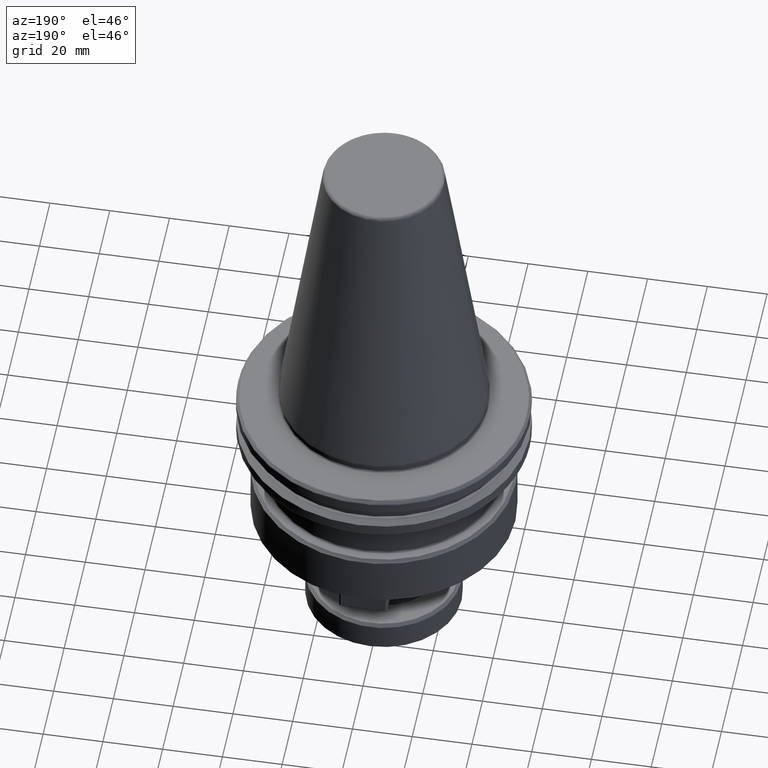
[diagram: clean part render]
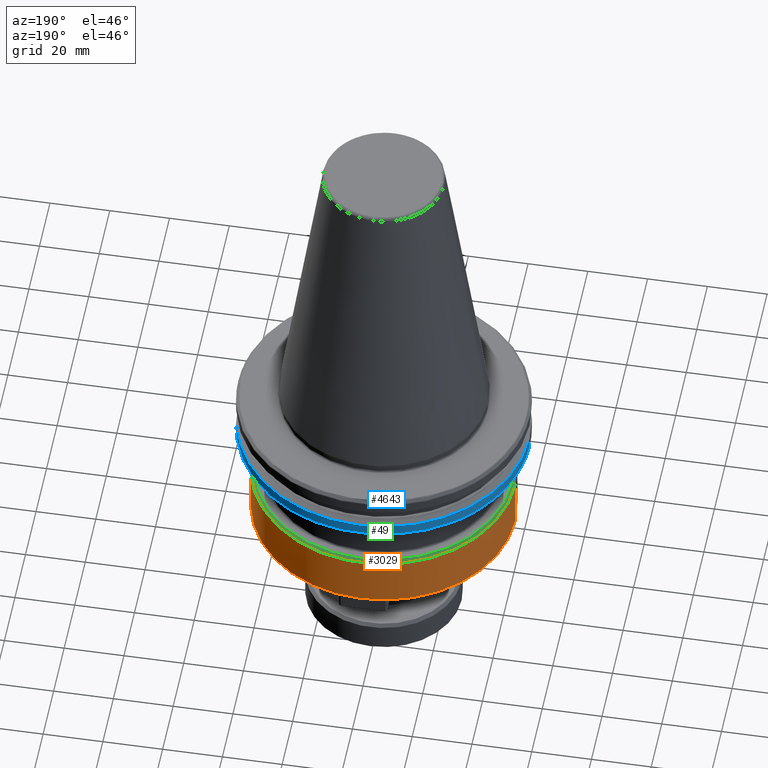
[diagram: same view with three faces highlighted in distinct colors, each labeled with its STEP entity id]
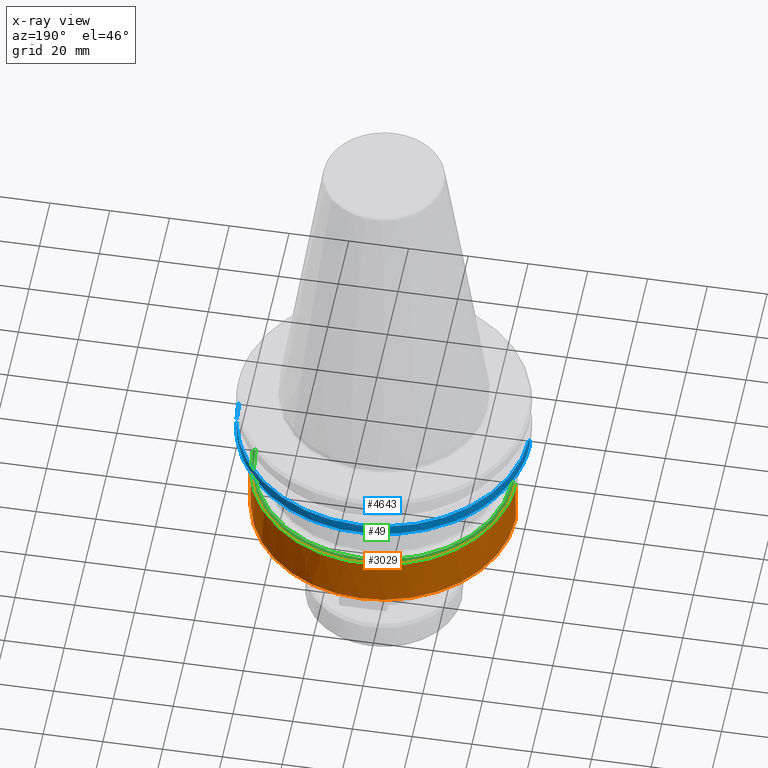
[diagram: x-ray of the same camera — body ghosted, the three highlighted faces saturated]
A machine part, auxiliary view with three faces highlighted in distinct colors.
The next image is the same camera in x-ray (body ghosted, the three faces saturated) — at least one of them is partly hidden behind the body in this view.
Their STEP definitions:

[orange] entity #3029 — the highlighted cylindrical surface (partial cylindrical patch) has radius 44 mm, axis along (0, 0, 1).
#22 = EDGE_CURVE ( 'NONE', #2137, #3876, #2977, .T. ) ;
#152 = VERTEX_POINT ( 'NONE', #4481 ) ;
#434 = ORIENTED_EDGE ( 'NONE', *, *, #4235, .T. ) ;
#473 = VERTEX_POINT ( 'NONE', #2372 ) ;
#618 = CARTESIAN_POINT ( 'NONE',  ( 0.0000000000000000000, 0.0000000000000000000, 0.0000000000000000000 ) ) ;
#655 = CARTESIAN_POINT ( 'NONE',  ( 0.0000000000000000000, 0.0000000000000000000, -37.00000000000000700 ) ) ;
#905 = VERTEX_POINT ( 'NONE', #4926 ) ;
#1079 = DIRECTION ( 'NONE',  ( -1.000000000000000000, 0.0000000000000000000, 0.0000000000000000000 ) ) ;
#1131 = VECTOR ( 'NONE', #3857, 1000.000000000000000 ) ;
#1318 = CYLINDRICAL_SURFACE ( 'NONE', #2894, 44.00000000000000000 ) ;
#1518 = DIRECTION ( 'NONE',  ( -0.0000000000000000000, -0.0000000000000000000, 1.000000000000000000 ) ) ;
#1564 = EDGE_LOOP ( 'NONE', ( #2395, #434, #2377, #1833, #3425 ) ) ;
#1634 = EDGE_CURVE ( 'NONE', #3876, #152, #3373, .T. ) ;
#1698 = DIRECTION ( 'NONE',  ( 1.000000000000000000, 0.0000000000000000000, 0.0000000000000000000 ) ) ;
#1751 = DIRECTION ( 'NONE',  ( 0.0000000000000000000, 0.0000000000000000000, 1.000000000000000000 ) ) ;
#1762 = CARTESIAN_POINT ( 'NONE',  ( 0.0000000000000000000, 0.0000000000000000000, -54.00000000000000000 ) ) ;
#1833 = ORIENTED_EDGE ( 'NONE', *, *, #3144, .F. ) ;
#2137 = VERTEX_POINT ( 'NONE', #2619 ) ;
#2219 = DIRECTION ( 'NONE',  ( 0.0000000000000000000, 0.0000000000000000000, 1.000000000000000000 ) ) ;
#2302 = DIRECTION ( 'NONE',  ( 0.0000000000000000000, 0.0000000000000000000, 1.000000000000000000 ) ) ;
#2372 = CARTESIAN_POINT ( 'NONE',  ( -44.00000000000000000, 5.388445916248353600E-015, -37.00000000000000700 ) ) ;
#2377 = ORIENTED_EDGE ( 'NONE', *, *, #3912, .F. ) ;
#2387 = FACE_OUTER_BOUND ( 'NONE', #1564, .T. ) ;
#2395 = ORIENTED_EDGE ( 'NONE', *, *, #1634, .T. ) ;
#2619 = CARTESIAN_POINT ( 'NONE',  ( 44.00000000000000000, 0.0000000000000000000, -54.00000000000000000 ) ) ;
#2894 = AXIS2_PLACEMENT_3D ( 'NONE', #618, #2302, #4469 ) ;
#2977 = CIRCLE ( 'NONE', #3361, 44.00000000000000000 ) ;
#3029 = ADVANCED_FACE ( 'NONE', ( #2387 ), #1318, .T. ) ;
#3143 = LINE ( 'NONE', #4202, #1131 ) ;
#3144 = EDGE_CURVE ( 'NONE', #2137, #905, #3143, .T. ) ;
#3359 = DIRECTION ( 'NONE',  ( 1.000000000000000000, 0.0000000000000000000, 0.0000000000000000000 ) ) ;
#3361 = AXIS2_PLACEMENT_3D ( 'NONE', #4707, #4063, #3359 ) ;
#3373 = CIRCLE ( 'NONE', #4730, 44.00000000000000000 ) ;
#3425 = ORIENTED_EDGE ( 'NONE', *, *, #22, .T. ) ;
#3847 = CIRCLE ( 'NONE', #3890, 44.00000000000000000 ) ;
#3857 = DIRECTION ( 'NONE',  ( 0.0000000000000000000, 0.0000000000000000000, 1.000000000000000000 ) ) ;
#3876 = VERTEX_POINT ( 'NONE', #4788 ) ;
#3890 = AXIS2_PLACEMENT_3D ( 'NONE', #655, #1518, #1079 ) ;
#3912 = EDGE_CURVE ( 'NONE', #905, #473, #3847, .T. ) ;
#3992 = CARTESIAN_POINT ( 'NONE',  ( -44.00000000000000000, 5.388445916248353600E-015, 0.0000000000000000000 ) ) ;
#4063 = DIRECTION ( 'NONE',  ( 0.0000000000000000000, 0.0000000000000000000, 1.000000000000000000 ) ) ;
#4202 = CARTESIAN_POINT ( 'NONE',  ( 44.00000000000000000, 0.0000000000000000000, 0.0000000000000000000 ) ) ;
#4235 = EDGE_CURVE ( 'NONE', #152, #473, #4747, .T. ) ;
#4469 = DIRECTION ( 'NONE',  ( 1.000000000000000000, 0.0000000000000000000, 0.0000000000000000000 ) ) ;
#4481 = CARTESIAN_POINT ( 'NONE',  ( -44.00000000000000000, 5.388445916248353600E-015, -54.00000000000000000 ) ) ;
#4694 = VECTOR ( 'NONE', #2219, 1000.000000000000000 ) ;
#4707 = CARTESIAN_POINT ( 'NONE',  ( 0.0000000000000000000, 0.0000000000000000000, -54.00000000000000000 ) ) ;
#4730 = AXIS2_PLACEMENT_3D ( 'NONE', #1762, #1751, #1698 ) ;
#4747 = LINE ( 'NONE', #3992, #4694 ) ;
#4788 = CARTESIAN_POINT ( 'NONE',  ( 5.388445916248352800E-015, 43.99999999999999300, -54.00000000000000000 ) ) ;
#4926 = CARTESIAN_POINT ( 'NONE',  ( 44.00000000000000000, 0.0000000000000000000, -37.00000000000000700 ) ) ;

[blue] entity #4643 — the highlighted cylindrical surface (partial cylindrical patch) has radius 48.75 mm, axis along (0, 0, 1).
#31 = AXIS2_PLACEMENT_3D ( 'NONE', #4576, #4237, #2055 ) ;
#216 = CYLINDRICAL_SURFACE ( 'NONE', #1454, 48.75000000000000000 ) ;
#231 = DIRECTION ( 'NONE',  ( 1.000000000000000000, 0.0000000000000000000, 0.0000000000000000000 ) ) ;
#342 = VERTEX_POINT ( 'NONE', #2580 ) ;
#353 = CARTESIAN_POINT ( 'NONE',  ( -38.42606537234849600, 30.00000000000000000, -17.93431457505076300 ) ) ;
#394 = CIRCLE ( 'NONE', #31, 48.75000000000000000 ) ;
#401 = DIRECTION ( 'NONE',  ( 0.0000000000000000000, 0.0000000000000000000, 1.000000000000000000 ) ) ;
#581 = ORIENTED_EDGE ( 'NONE', *, *, #1088, .T. ) ;
#630 = VERTEX_POINT ( 'NONE', #353 ) ;
#658 = DIRECTION ( 'NONE',  ( 1.000000000000000000, 0.0000000000000000000, 0.0000000000000000000 ) ) ;
#659 = DIRECTION ( 'NONE',  ( 0.0000000000000000000, 0.0000000000000000000, 1.000000000000000000 ) ) ;
#680 = CARTESIAN_POINT ( 'NONE',  ( 0.0000000000000000000, 0.0000000000000000000, -17.93431457505076300 ) ) ;
#686 = CIRCLE ( 'NONE', #3106, 48.75000000000000000 ) ;
#754 = CARTESIAN_POINT ( 'NONE',  ( -48.75000000000000000, 5.970153145843347100E-015, -17.93431457505076300 ) ) ;
#769 = EDGE_CURVE ( 'NONE', #3188, #2632, #4126, .T. ) ;
#773 = ORIENTED_EDGE ( 'NONE', *, *, #3423, .F. ) ;
#950 = CIRCLE ( 'NONE', #1957, 48.75000000000000000 ) ;
#961 = ORIENTED_EDGE ( 'NONE', *, *, #3886, .T. ) ;
#1030 = ORIENTED_EDGE ( 'NONE', *, *, #3303, .T. ) ;
#1054 = CARTESIAN_POINT ( 'NONE',  ( 46.87302845420869300, 13.39707817141268900, -17.93431457505076300 ) ) ;
#1088 = EDGE_CURVE ( 'NONE', #1479, #630, #3963, .T. ) ;
#1102 = DIRECTION ( 'NONE',  ( -0.0000000000000000000, -0.0000000000000000000, 1.000000000000000000 ) ) ;
#1284 = DIRECTION ( 'NONE',  ( 1.000000000000000000, 0.0000000000000000000, 0.0000000000000000000 ) ) ;
#1311 = EDGE_CURVE ( 'NONE', #3188, #3830, #4879, .T. ) ;
#1454 = AXIS2_PLACEMENT_3D ( 'NONE', #2878, #1568, #1617 ) ;
#1464 = CARTESIAN_POINT ( 'NONE',  ( 48.75000000000000000, 0.0000000000000000000, -14.34759526419165900 ) ) ;
#1479 = VERTEX_POINT ( 'NONE', #3048 ) ;
#1542 = DIRECTION ( 'NONE',  ( -1.000000000000000000, 0.0000000000000000000, 0.0000000000000000000 ) ) ;
#1568 = DIRECTION ( 'NONE',  ( 0.0000000000000000000, 0.0000000000000000000, 1.000000000000000000 ) ) ;
#1581 = EDGE_LOOP ( 'NONE', ( #3613, #1030, #2385, #773, #4243, #3414, #961, #581, #2720 ) ) ;
#1617 = DIRECTION ( 'NONE',  ( 1.000000000000000000, 0.0000000000000000000, 0.0000000000000000000 ) ) ;
#1680 = VECTOR ( 'NONE', #401, 1000.000000000000000 ) ;
#1720 = DIRECTION ( 'NONE',  ( -0.0000000000000000000, -0.0000000000000000000, 1.000000000000000000 ) ) ;
#1752 = CARTESIAN_POINT ( 'NONE',  ( 0.0000000000000000000, 48.75000000000000000, -14.34759526419165900 ) ) ;
#1957 = AXIS2_PLACEMENT_3D ( 'NONE', #680, #659, #658 ) ;
#2019 = AXIS2_PLACEMENT_3D ( 'NONE', #4834, #3002, #3659 ) ;
#2055 = DIRECTION ( 'NONE',  ( -1.000000000000000000, -8.881784197001252300E-016, 0.0000000000000000000 ) ) ;
#2385 = ORIENTED_EDGE ( 'NONE', *, *, #3178, .F. ) ;
#2443 = LINE ( 'NONE', #2476, #1680 ) ;
#2476 = CARTESIAN_POINT ( 'NONE',  ( -48.75000000000000000, 5.970153145843347100E-015, 113.5216080541959500 ) ) ;
#2580 = CARTESIAN_POINT ( 'NONE',  ( -46.83796378645138200, 13.51915856623736000, -17.93431457505076300 ) ) ;
#2632 = VERTEX_POINT ( 'NONE', #1054 ) ;
#2700 = AXIS2_PLACEMENT_3D ( 'NONE', #4445, #4438, #4432 ) ;
#2704 = DIRECTION ( 'NONE',  ( 0.0000000000000000000, 0.0000000000000000000, 1.000000000000000000 ) ) ;
#2720 = ORIENTED_EDGE ( 'NONE', *, *, #2783, .T. ) ;
#2772 = VERTEX_POINT ( 'NONE', #754 ) ;
#2783 = EDGE_CURVE ( 'NONE', #630, #342, #950, .T. ) ;
#2861 = FACE_OUTER_BOUND ( 'NONE', #1581, .T. ) ;
#2878 = CARTESIAN_POINT ( 'NONE',  ( 0.0000000000000000000, 0.0000000000000000000, 113.5216080541959500 ) ) ;
#2898 = VERTEX_POINT ( 'NONE', #4046 ) ;
#3002 = DIRECTION ( 'NONE',  ( -0.0000000000000000000, -0.0000000000000000000, 1.000000000000000000 ) ) ;
#3047 = AXIS2_PLACEMENT_3D ( 'NONE', #3421, #1102, #1542 ) ;
#3048 = CARTESIAN_POINT ( 'NONE',  ( -29.99999999999999600, 38.42606537234850400, -17.93431457505076300 ) ) ;
#3106 = AXIS2_PLACEMENT_3D ( 'NONE', #3940, #1720, #1284 ) ;
#3178 = EDGE_CURVE ( 'NONE', #4357, #2898, #394, .T. ) ;
#3188 = VERTEX_POINT ( 'NONE', #4921 ) ;
#3193 = AXIS2_PLACEMENT_3D ( 'NONE', #4799, #2704, #231 ) ;
#3303 = EDGE_CURVE ( 'NONE', #2772, #2898, #2443, .T. ) ;
#3414 = ORIENTED_EDGE ( 'NONE', *, *, #769, .T. ) ;
#3421 = CARTESIAN_POINT ( 'NONE',  ( 0.0000000000000000000, 0.0000000000000000000, -14.34759526419165900 ) ) ;
#3423 = EDGE_CURVE ( 'NONE', #3830, #4357, #4806, .T. ) ;
#3537 = DIRECTION ( 'NONE',  ( 0.0000000000000000000, 0.0000000000000000000, 1.000000000000000000 ) ) ;
#3613 = ORIENTED_EDGE ( 'NONE', *, *, #4109, .T. ) ;
#3659 = DIRECTION ( 'NONE',  ( 1.000000000000000000, 0.0000000000000000000, 0.0000000000000000000 ) ) ;
#3830 = VERTEX_POINT ( 'NONE', #1464 ) ;
#3886 = EDGE_CURVE ( 'NONE', #2632, #1479, #4211, .T. ) ;
#3940 = CARTESIAN_POINT ( 'NONE',  ( 0.0000000000000000000, 0.0000000000000000000, -17.93431457505076300 ) ) ;
#3963 = CIRCLE ( 'NONE', #2700, 48.75000000000000000 ) ;
#4046 = CARTESIAN_POINT ( 'NONE',  ( -48.75000000000000000, 5.970153145843347100E-015, -14.34759526419165900 ) ) ;
#4096 = CARTESIAN_POINT ( 'NONE',  ( 48.75000000000000000, 0.0000000000000000000, 113.5216080541959500 ) ) ;
#4109 = EDGE_CURVE ( 'NONE', #342, #2772, #686, .T. ) ;
#4126 = CIRCLE ( 'NONE', #2019, 48.75000000000000000 ) ;
#4211 = CIRCLE ( 'NONE', #3193, 48.75000000000000000 ) ;
#4237 = DIRECTION ( 'NONE',  ( -0.0000000000000000000, -0.0000000000000000000, 1.000000000000000000 ) ) ;
#4243 = ORIENTED_EDGE ( 'NONE', *, *, #1311, .F. ) ;
#4357 = VERTEX_POINT ( 'NONE', #1752 ) ;
#4432 = DIRECTION ( 'NONE',  ( 1.000000000000000000, 0.0000000000000000000, 0.0000000000000000000 ) ) ;
#4438 = DIRECTION ( 'NONE',  ( -0.0000000000000000000, -0.0000000000000000000, 1.000000000000000000 ) ) ;
#4445 = CARTESIAN_POINT ( 'NONE',  ( 0.0000000000000000000, 0.0000000000000000000, -17.93431457505076300 ) ) ;
#4576 = CARTESIAN_POINT ( 'NONE',  ( 0.0000000000000000000, 0.0000000000000000000, -14.34759526419165900 ) ) ;
#4643 = ADVANCED_FACE ( 'NONE', ( #2861 ), #216, .T. ) ;
#4799 = CARTESIAN_POINT ( 'NONE',  ( 0.0000000000000000000, 0.0000000000000000000, -17.93431457505076300 ) ) ;
#4806 = CIRCLE ( 'NONE', #3047, 48.75000000000000000 ) ;
#4834 = CARTESIAN_POINT ( 'NONE',  ( 0.0000000000000000000, 0.0000000000000000000, -17.93431457505076300 ) ) ;
#4879 = LINE ( 'NONE', #4096, #4937 ) ;
#4921 = CARTESIAN_POINT ( 'NONE',  ( 48.75000000000000000, 0.0000000000000000000, -17.93431457505076300 ) ) ;
#4937 = VECTOR ( 'NONE', #3537, 1000.000000000000000 ) ;

[green] entity #49 — the highlighted conical surface has half-angle 45 deg.
#49 = ADVANCED_FACE ( 'NONE', ( #2995 ), #2497, .T. ) ;
#139 = ORIENTED_EDGE ( 'NONE', *, *, #3912, .T. ) ;
#392 = ORIENTED_EDGE ( 'NONE', *, *, #808, .F. ) ;
#473 = VERTEX_POINT ( 'NONE', #2372 ) ;
#524 = DIRECTION ( 'NONE',  ( -1.000000000000000000, 0.0000000000000000000, 0.0000000000000000000 ) ) ;
#655 = CARTESIAN_POINT ( 'NONE',  ( 0.0000000000000000000, 0.0000000000000000000, -37.00000000000000700 ) ) ;
#808 = EDGE_CURVE ( 'NONE', #4236, #3281, #4180, .T. ) ;
#905 = VERTEX_POINT ( 'NONE', #4926 ) ;
#977 = CARTESIAN_POINT ( 'NONE',  ( 43.00000000000000000, 5.327213576290986800E-015, -36.00000000000001400 ) ) ;
#1067 = AXIS2_PLACEMENT_3D ( 'NONE', #3869, #4519, #3619 ) ;
#1079 = DIRECTION ( 'NONE',  ( -1.000000000000000000, 0.0000000000000000000, 0.0000000000000000000 ) ) ;
#1237 = CARTESIAN_POINT ( 'NONE',  ( -43.00000000000000000, 0.0000000000000000000, -36.00000000000001400 ) ) ;
#1287 = VECTOR ( 'NONE', #3231, 1000.000000000000000 ) ;
#1295 = ORIENTED_EDGE ( 'NONE', *, *, #4394, .F. ) ;
#1518 = DIRECTION ( 'NONE',  ( -0.0000000000000000000, -0.0000000000000000000, 1.000000000000000000 ) ) ;
#1567 = EDGE_LOOP ( 'NONE', ( #392, #2728, #139, #1295 ) ) ;
#2372 = CARTESIAN_POINT ( 'NONE',  ( -44.00000000000000000, 5.388445916248353600E-015, -37.00000000000000700 ) ) ;
#2497 = CONICAL_SURFACE ( 'NONE', #1067, 44.00000000000000000, 0.7853981633974482800 ) ;
#2728 = ORIENTED_EDGE ( 'NONE', *, *, #3324, .T. ) ;
#2890 = CARTESIAN_POINT ( 'NONE',  ( 0.0000000000000000000, 0.0000000000000000000, -36.00000000000001400 ) ) ;
#2995 = FACE_OUTER_BOUND ( 'NONE', #1567, .T. ) ;
#3231 = DIRECTION ( 'NONE',  ( 0.7071067811865474600, 8.659560562354931600E-017, -0.7071067811865475700 ) ) ;
#3281 = VERTEX_POINT ( 'NONE', #1237 ) ;
#3324 = EDGE_CURVE ( 'NONE', #4236, #905, #3787, .T. ) ;
#3487 = AXIS2_PLACEMENT_3D ( 'NONE', #2890, #3911, #524 ) ;
#3619 = DIRECTION ( 'NONE',  ( -1.000000000000000000, 0.0000000000000000000, 0.0000000000000000000 ) ) ;
#3787 = LINE ( 'NONE', #4966, #1287 ) ;
#3847 = CIRCLE ( 'NONE', #3890, 44.00000000000000000 ) ;
#3869 = CARTESIAN_POINT ( 'NONE',  ( 0.0000000000000000000, 0.0000000000000000000, -37.00000000000000700 ) ) ;
#3890 = AXIS2_PLACEMENT_3D ( 'NONE', #655, #1518, #1079 ) ;
#3911 = DIRECTION ( 'NONE',  ( -0.0000000000000000000, -0.0000000000000000000, 1.000000000000000000 ) ) ;
#3912 = EDGE_CURVE ( 'NONE', #905, #473, #3847, .T. ) ;
#4087 = LINE ( 'NONE', #4319, #4177 ) ;
#4177 = VECTOR ( 'NONE', #4910, 1000.000000000000000 ) ;
#4180 = CIRCLE ( 'NONE', #3487, 43.00000000000000000 ) ;
#4236 = VERTEX_POINT ( 'NONE', #977 ) ;
#4319 = CARTESIAN_POINT ( 'NONE',  ( -44.00000000000000000, 0.0000000000000000000, -37.00000000000000700 ) ) ;
#4394 = EDGE_CURVE ( 'NONE', #3281, #473, #4087, .T. ) ;
#4519 = DIRECTION ( 'NONE',  ( 0.0000000000000000000, 0.0000000000000000000, -1.000000000000000000 ) ) ;
#4910 = DIRECTION ( 'NONE',  ( -0.7071067811865474600, 0.0000000000000000000, -0.7071067811865475700 ) ) ;
#4926 = CARTESIAN_POINT ( 'NONE',  ( 44.00000000000000000, 0.0000000000000000000, -37.00000000000000700 ) ) ;
#4966 = CARTESIAN_POINT ( 'NONE',  ( 44.00000000000000000, 5.388445916248353600E-015, -37.00000000000000700 ) ) ;